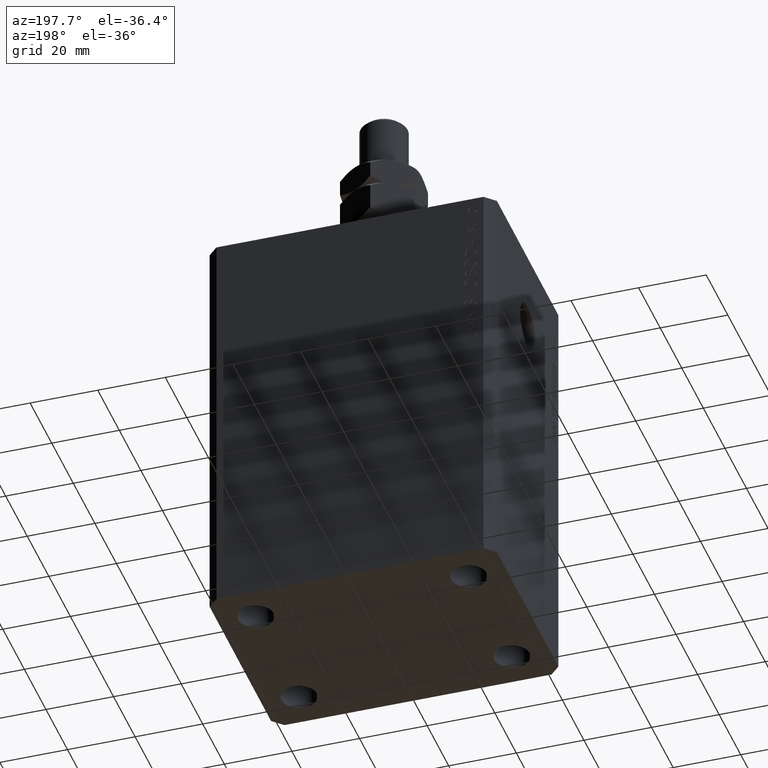
[diagram: clean part render]
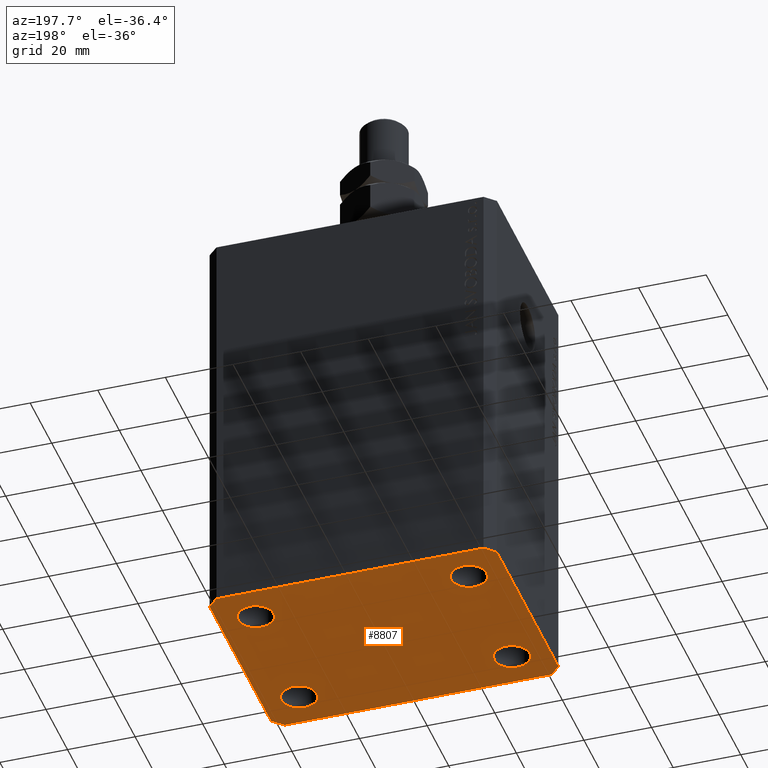
[diagram: same view with one face highlighted and labeled with its STEP entity id]
A machine part, auxiliary view. The second image highlights one B-rep face of the part: STEP entity #8807.
In plain terms, the highlighted planar face has unit normal (0, 0, 1).
Its self-contained STEP definition (entity closure, byte-faithful):
#283 = VERTEX_POINT ( 'NONE', #22513 ) ;
#628 = DIRECTION ( 'NONE',  ( -0.000000000000000000, -0.000000000000000000, -1.000000000000000000 ) ) ;
#665 = ORIENTED_EDGE ( 'NONE', *, *, #14880, .F. ) ;
#842 = DIRECTION ( 'NONE',  ( 1.000000000000000000, 0.000000000000000000, 0.000000000000000000 ) ) ;
#1002 = VECTOR ( 'NONE', #19883, 1000.000000000000000 ) ;
#1294 = CARTESIAN_POINT ( 'NONE',  ( 31.49999999999999289, -20.00000000000000355, -123.0000000000000000 ) ) ;
#1583 = DIRECTION ( 'NONE',  ( 0.7071067811865471286, -0.7071067811865479058, 0.000000000000000000 ) ) ;
#2202 = CARTESIAN_POINT ( 'NONE',  ( -42.50000000000000000, -28.50000000000000000, -123.0000000000000000 ) ) ;
#2683 = LINE ( 'NONE', #40995, #29961 ) ;
#3008 = CIRCLE ( 'NONE', #28945, 5.250000000000000888 ) ;
#3179 = FACE_BOUND ( 'NONE', #13928, .T. ) ;
#3445 = EDGE_CURVE ( 'NONE', #283, #6740, #11666, .T. ) ;
#3553 = CARTESIAN_POINT ( 'NONE',  ( -26.25000000000000000, 19.99999999999999645, -123.0000000000000000 ) ) ;
#3783 = EDGE_CURVE ( 'NONE', #32902, #24997, #24267, .T. ) ;
#4389 = CARTESIAN_POINT ( 'NONE',  ( -39.50000000000000711, 31.50000000000000000, -123.0000000000000000 ) ) ;
#4553 = CARTESIAN_POINT ( 'NONE',  ( -26.24999999999999289, -20.00000000000000355, -123.0000000000000000 ) ) ;
#4696 = EDGE_LOOP ( 'NONE', ( #7126, #30738, #45065, #22876, #6798, #29335, #31353, #45471 ) ) ;
#4698 = CARTESIAN_POINT ( 'NONE',  ( -36.75000000000000000, 19.99999999999999645, -123.0000000000000000 ) ) ;
#5008 = VECTOR ( 'NONE', #5934, 1000.000000000000000 ) ;
#5147 = EDGE_CURVE ( 'NONE', #30478, #26128, #31232, .T. ) ;
#5359 = CARTESIAN_POINT ( 'NONE',  ( -31.49999999999999289, -20.00000000000000355, -123.0000000000000000 ) ) ;
#5934 = DIRECTION ( 'NONE',  ( 1.000000000000000000, 0.000000000000000000, 0.000000000000000000 ) ) ;
#5964 = DIRECTION ( 'NONE',  ( 1.000000000000000000, 0.000000000000000000, 0.000000000000000000 ) ) ;
#5991 = LINE ( 'NONE', #37566, #6918 ) ;
#6207 = DIRECTION ( 'NONE',  ( 0.000000000000000000, 0.000000000000000000, 1.000000000000000000 ) ) ;
#6740 = VERTEX_POINT ( 'NONE', #8675 ) ;
#6798 = ORIENTED_EDGE ( 'NONE', *, *, #5147, .F. ) ;
#6886 = AXIS2_PLACEMENT_3D ( 'NONE', #1294, #28927, #842 ) ;
#6918 = VECTOR ( 'NONE', #1583, 1000.000000000000000 ) ;
#7126 = ORIENTED_EDGE ( 'NONE', *, *, #23107, .F. ) ;
#7239 = ORIENTED_EDGE ( 'NONE', *, *, #3783, .F. ) ;
#7728 = CARTESIAN_POINT ( 'NONE',  ( -39.50000000000000711, 31.50000000000000000, -123.0000000000000000 ) ) ;
#7941 = ORIENTED_EDGE ( 'NONE', *, *, #14535, .F. ) ;
#8271 = VERTEX_POINT ( 'NONE', #38347 ) ;
#8675 = CARTESIAN_POINT ( 'NONE',  ( 42.50000000000051870, 28.49999999999995381, -123.0000000000000000 ) ) ;
#8807 = ADVANCED_FACE ( 'NONE', ( #3179, #20373, #24530, #34539, #31732 ), #45665, .F. ) ;
#9855 = CIRCLE ( 'NONE', #6886, 5.249999999999997335 ) ;
#11145 = DIRECTION ( 'NONE',  ( -0.000000000000000000, -0.000000000000000000, -1.000000000000000000 ) ) ;
#11666 = LINE ( 'NONE', #43478, #30929 ) ;
#11992 = CARTESIAN_POINT ( 'NONE',  ( 36.74999999999999289, -20.00000000000000355, -123.0000000000000000 ) ) ;
#12511 = DIRECTION ( 'NONE',  ( 1.000000000000000000, 0.000000000000000000, 0.000000000000000000 ) ) ;
#13131 = CARTESIAN_POINT ( 'NONE',  ( -39.50000000000000711, -31.50000000000000000, -123.0000000000000000 ) ) ;
#13356 = DIRECTION ( 'NONE',  ( -1.000000000000000000, 8.783410004945795812E-17, 0.000000000000000000 ) ) ;
#13852 = DIRECTION ( 'NONE',  ( 1.000000000000000000, 0.000000000000000000, -0.000000000000000000 ) ) ;
#13926 = AXIS2_PLACEMENT_3D ( 'NONE', #45895, #6207, #13852 ) ;
#13928 = EDGE_LOOP ( 'NONE', ( #7239, #30126 ) ) ;
#14535 = EDGE_CURVE ( 'NONE', #39514, #36952, #3008, .T. ) ;
#14784 = CARTESIAN_POINT ( 'NONE',  ( 31.50000000000000000, 19.99999999999999289, -123.0000000000000000 ) ) ;
#14835 = VERTEX_POINT ( 'NONE', #2202 ) ;
#14880 = EDGE_CURVE ( 'NONE', #20727, #8271, #23942, .T. ) ;
#15709 = DIRECTION ( 'NONE',  ( 0.7071067811865483499, 0.7071067811865466846, 0.000000000000000000 ) ) ;
#15839 = LINE ( 'NONE', #39763, #34114 ) ;
#16640 = LINE ( 'NONE', #33589, #1002 ) ;
#16748 = ORIENTED_EDGE ( 'NONE', *, *, #35400, .F. ) ;
#18253 = DIRECTION ( 'NONE',  ( 1.000000000000000000, 0.000000000000000000, 0.000000000000000000 ) ) ;
#18520 = EDGE_LOOP ( 'NONE', ( #24978, #665 ) ) ;
#18552 = DIRECTION ( 'NONE',  ( -0.7071067811865471286, -0.7071067811865479058, 0.000000000000000000 ) ) ;
#18837 = DIRECTION ( 'NONE',  ( -0.000000000000000000, -0.000000000000000000, -1.000000000000000000 ) ) ;
#19883 = DIRECTION ( 'NONE',  ( 0.000000000000000000, -1.000000000000000000, 0.000000000000000000 ) ) ;
#19973 = CARTESIAN_POINT ( 'NONE',  ( 39.50000000000056843, 31.49999999999999289, -123.0000000000000000 ) ) ;
#20054 = CARTESIAN_POINT ( 'NONE',  ( 26.24999999999999645, -20.00000000000000355, -123.0000000000000000 ) ) ;
#20373 = FACE_BOUND ( 'NONE', #23940, .T. ) ;
#20727 = VERTEX_POINT ( 'NONE', #42464 ) ;
#21031 = EDGE_CURVE ( 'NONE', #36952, #39514, #36557, .T. ) ;
#21426 = CARTESIAN_POINT ( 'NONE',  ( -36.74999999999999289, -20.00000000000000355, -123.0000000000000000 ) ) ;
#21531 = CIRCLE ( 'NONE', #31176, 5.250000000000000888 ) ;
#22491 = EDGE_CURVE ( 'NONE', #40260, #35697, #28544, .T. ) ;
#22513 = CARTESIAN_POINT ( 'NONE',  ( 42.50000000000000711, -28.50000000000000355, -123.0000000000000000 ) ) ;
#22673 = CARTESIAN_POINT ( 'NONE',  ( -42.50000000000000000, 28.50000000000000000, -123.0000000000000000 ) ) ;
#22876 = ORIENTED_EDGE ( 'NONE', *, *, #38326, .F. ) ;
#23107 = EDGE_CURVE ( 'NONE', #28720, #40260, #2683, .T. ) ;
#23940 = EDGE_LOOP ( 'NONE', ( #38594, #16748 ) ) ;
#23942 = CIRCLE ( 'NONE', #40981, 5.249999999999997335 ) ;
#24012 = CARTESIAN_POINT ( 'NONE',  ( 31.50000000000000000, 19.99999999999999289, -123.0000000000000000 ) ) ;
#24070 = CARTESIAN_POINT ( 'NONE',  ( -31.50000000000000000, 19.99999999999999645, -123.0000000000000000 ) ) ;
#24267 = CIRCLE ( 'NONE', #25745, 5.250000000000000888 ) ;
#24530 = FACE_BOUND ( 'NONE', #18520, .T. ) ;
#24978 = ORIENTED_EDGE ( 'NONE', *, *, #44565, .F. ) ;
#24997 = VERTEX_POINT ( 'NONE', #21426 ) ;
#25745 = AXIS2_PLACEMENT_3D ( 'NONE', #5359, #18837, #37153 ) ;
#25876 = EDGE_CURVE ( 'NONE', #6740, #28720, #15839, .T. ) ;
#26128 = VERTEX_POINT ( 'NONE', #26516 ) ;
#26149 = LINE ( 'NONE', #37057, #41718 ) ;
#26179 = AXIS2_PLACEMENT_3D ( 'NONE', #32637, #29371, #18253 ) ;
#26190 = CIRCLE ( 'NONE', #41783, 5.249999999999997335 ) ;
#26226 = DIRECTION ( 'NONE',  ( 1.000000000000000000, 0.000000000000000000, 0.000000000000000000 ) ) ;
#26516 = CARTESIAN_POINT ( 'NONE',  ( 39.50000000000000711, -31.50000000000000000, -123.0000000000000000 ) ) ;
#27263 = DIRECTION ( 'NONE',  ( 1.000000000000000000, 0.000000000000000000, 0.000000000000000000 ) ) ;
#28544 = LINE ( 'NONE', #4389, #41032 ) ;
#28720 = VERTEX_POINT ( 'NONE', #19973 ) ;
#28927 = DIRECTION ( 'NONE',  ( -0.000000000000000000, -0.000000000000000000, -1.000000000000000000 ) ) ;
#28945 = AXIS2_PLACEMENT_3D ( 'NONE', #24070, #30581, #5964 ) ;
#29170 = ORIENTED_EDGE ( 'NONE', *, *, #21031, .F. ) ;
#29242 = CARTESIAN_POINT ( 'NONE',  ( -31.49999999999999289, -20.00000000000000355, -123.0000000000000000 ) ) ;
#29335 = ORIENTED_EDGE ( 'NONE', *, *, #43644, .F. ) ;
#29371 = DIRECTION ( 'NONE',  ( -0.000000000000000000, -0.000000000000000000, -1.000000000000000000 ) ) ;
#29961 = VECTOR ( 'NONE', #13356, 1000.000000000000000 ) ;
#30126 = ORIENTED_EDGE ( 'NONE', *, *, #31609, .F. ) ;
#30162 = CARTESIAN_POINT ( 'NONE',  ( 31.49999999999999289, -20.00000000000000355, -123.0000000000000000 ) ) ;
#30478 = VERTEX_POINT ( 'NONE', #41415 ) ;
#30581 = DIRECTION ( 'NONE',  ( -0.000000000000000000, -0.000000000000000000, -1.000000000000000000 ) ) ;
#30738 = ORIENTED_EDGE ( 'NONE', *, *, #25876, .F. ) ;
#30929 = VECTOR ( 'NONE', #35839, 1000.000000000000000 ) ;
#31176 = AXIS2_PLACEMENT_3D ( 'NONE', #29242, #11145, #26226 ) ;
#31232 = LINE ( 'NONE', #13131, #5008 ) ;
#31353 = ORIENTED_EDGE ( 'NONE', *, *, #45472, .F. ) ;
#31609 = EDGE_CURVE ( 'NONE', #24997, #32902, #21531, .T. ) ;
#31732 = FACE_OUTER_BOUND ( 'NONE', #4696, .T. ) ;
#32637 = CARTESIAN_POINT ( 'NONE',  ( -31.50000000000000000, 19.99999999999999645, -123.0000000000000000 ) ) ;
#32902 = VERTEX_POINT ( 'NONE', #4553 ) ;
#33124 = DIRECTION ( 'NONE',  ( 1.000000000000000000, 0.000000000000000000, 0.000000000000000000 ) ) ;
#33589 = CARTESIAN_POINT ( 'NONE',  ( -42.50000000000000000, 28.50000000000000000, -123.0000000000000000 ) ) ;
#34114 = VECTOR ( 'NONE', #36738, 1000.000000000000114 ) ;
#34317 = EDGE_LOOP ( 'NONE', ( #7941, #29170 ) ) ;
#34539 = FACE_BOUND ( 'NONE', #34317, .T. ) ;
#35000 = AXIS2_PLACEMENT_3D ( 'NONE', #30162, #44315, #12511 ) ;
#35400 = EDGE_CURVE ( 'NONE', #38561, #38329, #35723, .T. ) ;
#35697 = VERTEX_POINT ( 'NONE', #22673 ) ;
#35723 = CIRCLE ( 'NONE', #35000, 5.249999999999997335 ) ;
#35839 = DIRECTION ( 'NONE',  ( 8.886653596232072440E-15, 1.000000000000000000, 0.000000000000000000 ) ) ;
#36557 = CIRCLE ( 'NONE', #26179, 5.250000000000000888 ) ;
#36738 = DIRECTION ( 'NONE',  ( -0.7071067811865364705, 0.7071067811865584529, 0.000000000000000000 ) ) ;
#36952 = VERTEX_POINT ( 'NONE', #4698 ) ;
#37057 = CARTESIAN_POINT ( 'NONE',  ( 39.50000000000000711, -31.50000000000000000, -123.0000000000000000 ) ) ;
#37153 = DIRECTION ( 'NONE',  ( 1.000000000000000000, 0.000000000000000000, 0.000000000000000000 ) ) ;
#37566 = CARTESIAN_POINT ( 'NONE',  ( -42.50000000000000000, -28.50000000000000000, -123.0000000000000000 ) ) ;
#38326 = EDGE_CURVE ( 'NONE', #26128, #283, #26149, .T. ) ;
#38329 = VERTEX_POINT ( 'NONE', #11992 ) ;
#38347 = CARTESIAN_POINT ( 'NONE',  ( 36.75000000000000000, 19.99999999999999289, -123.0000000000000000 ) ) ;
#38561 = VERTEX_POINT ( 'NONE', #20054 ) ;
#38594 = ORIENTED_EDGE ( 'NONE', *, *, #42833, .F. ) ;
#39514 = VERTEX_POINT ( 'NONE', #3553 ) ;
#39763 = CARTESIAN_POINT ( 'NONE',  ( 42.50000000000051870, 28.49999999999995381, -123.0000000000000000 ) ) ;
#40260 = VERTEX_POINT ( 'NONE', #7728 ) ;
#40981 = AXIS2_PLACEMENT_3D ( 'NONE', #24012, #45375, #27263 ) ;
#40995 = CARTESIAN_POINT ( 'NONE',  ( 39.50000000000056843, 31.49999999999999289, -123.0000000000000000 ) ) ;
#41032 = VECTOR ( 'NONE', #18552, 1000.000000000000000 ) ;
#41415 = CARTESIAN_POINT ( 'NONE',  ( -39.50000000000000711, -31.50000000000000000, -123.0000000000000000 ) ) ;
#41718 = VECTOR ( 'NONE', #15709, 1000.000000000000000 ) ;
#41783 = AXIS2_PLACEMENT_3D ( 'NONE', #14784, #628, #33124 ) ;
#42464 = CARTESIAN_POINT ( 'NONE',  ( 26.25000000000000355, 19.99999999999999289, -123.0000000000000000 ) ) ;
#42833 = EDGE_CURVE ( 'NONE', #38329, #38561, #9855, .T. ) ;
#43478 = CARTESIAN_POINT ( 'NONE',  ( 42.50000000000000711, -28.50000000000000355, -123.0000000000000000 ) ) ;
#43644 = EDGE_CURVE ( 'NONE', #14835, #30478, #5991, .T. ) ;
#44315 = DIRECTION ( 'NONE',  ( -0.000000000000000000, -0.000000000000000000, -1.000000000000000000 ) ) ;
#44565 = EDGE_CURVE ( 'NONE', #8271, #20727, #26190, .T. ) ;
#45065 = ORIENTED_EDGE ( 'NONE', *, *, #3445, .F. ) ;
#45375 = DIRECTION ( 'NONE',  ( -0.000000000000000000, -0.000000000000000000, -1.000000000000000000 ) ) ;
#45471 = ORIENTED_EDGE ( 'NONE', *, *, #22491, .F. ) ;
#45472 = EDGE_CURVE ( 'NONE', #35697, #14835, #16640, .T. ) ;
#45665 = PLANE ( 'NONE',  #13926 ) ;
#45895 = CARTESIAN_POINT ( 'NONE',  ( 0.000000000000000000, 0.000000000000000000, -123.0000000000000000 ) ) ;